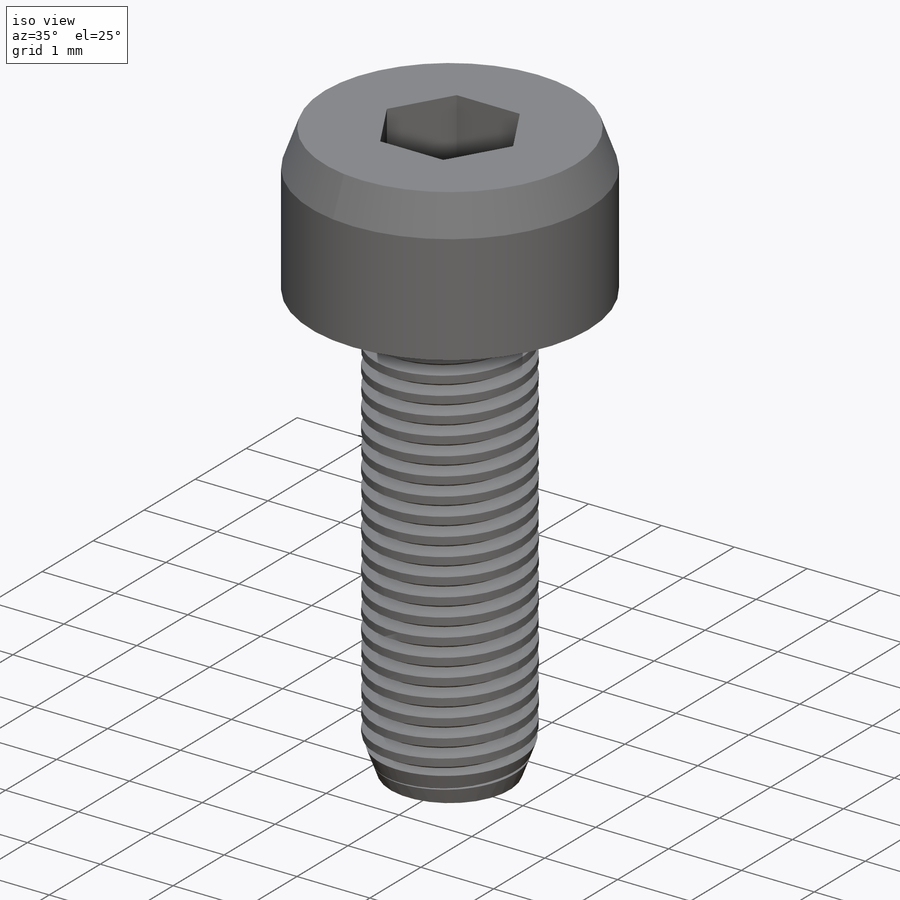
[diagram: iso view]
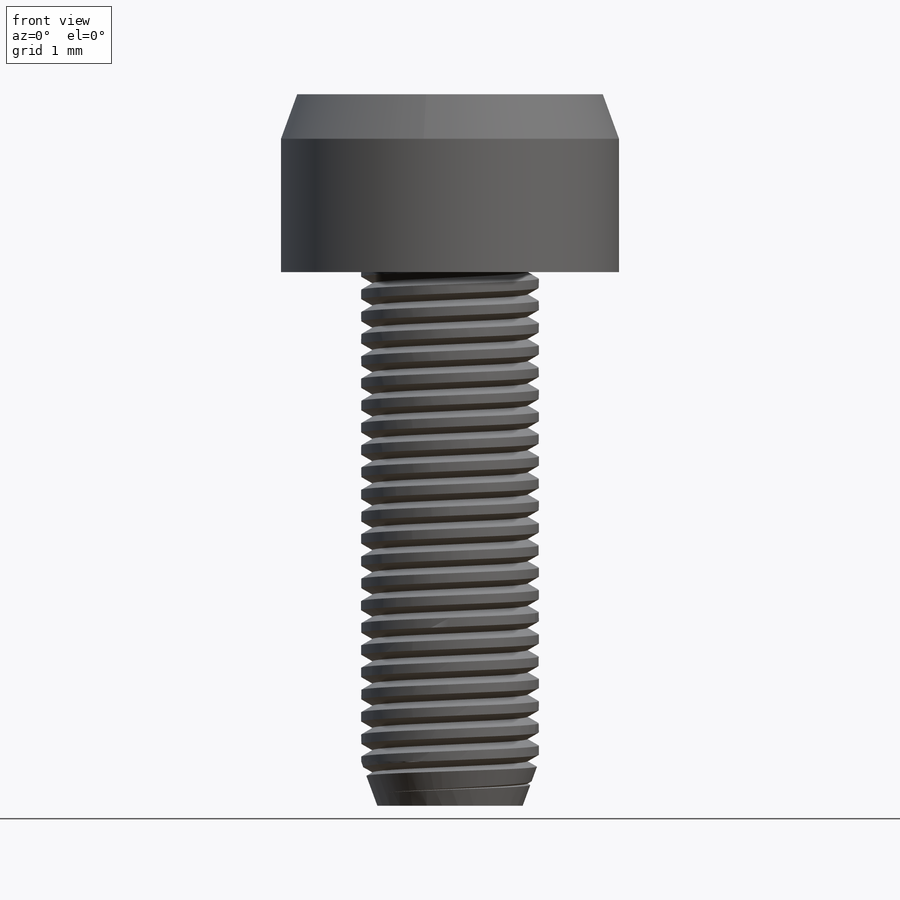
[diagram: front view]
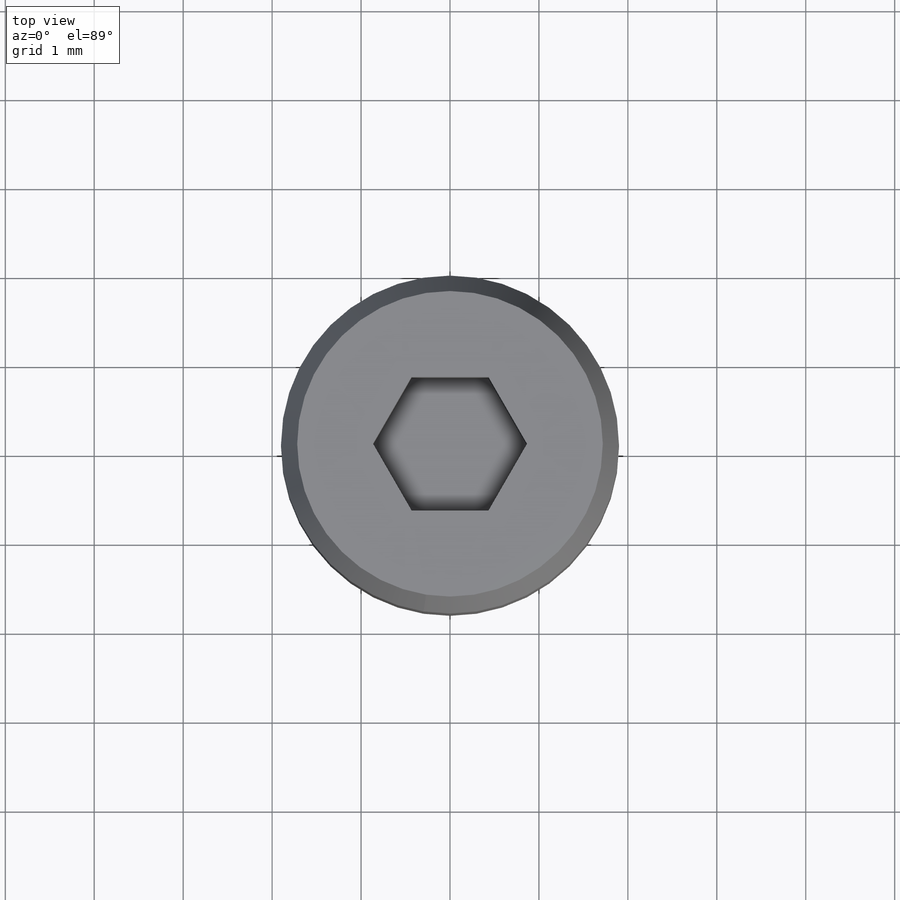
[diagram: top view]
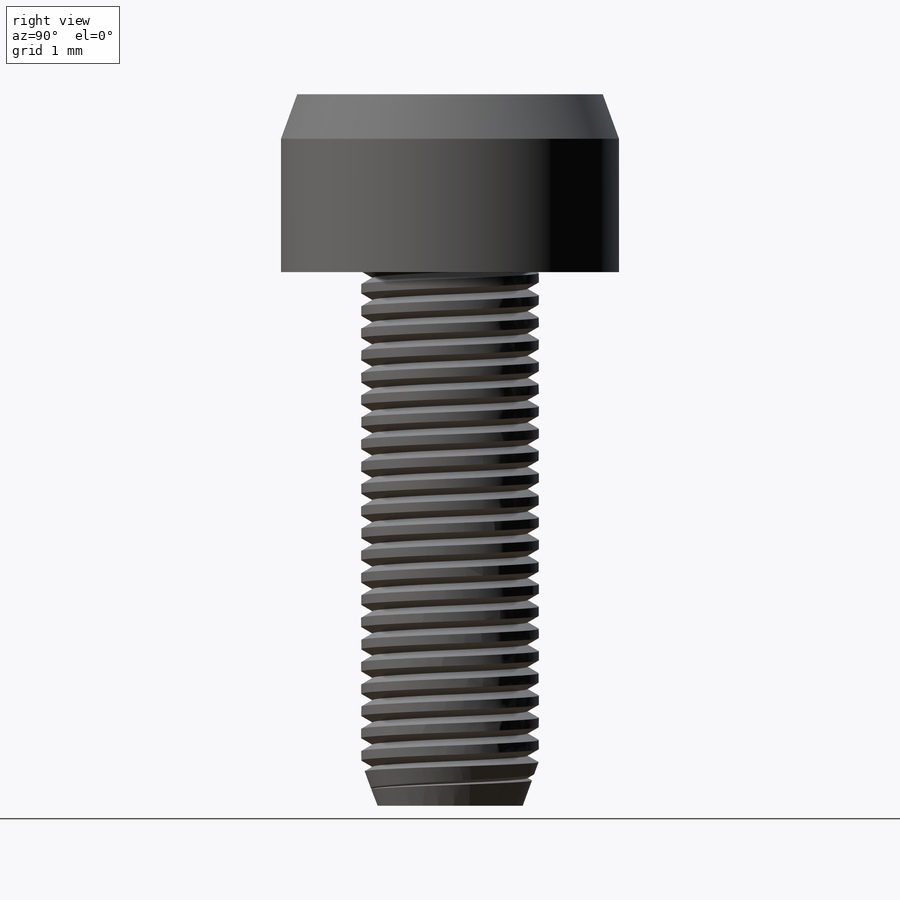
[diagram: right view]
SOLIDWORKS PART (.sldprt)
format: sldprt  version: not decoded by parser v0  size: 620,544 bytes
history: native  units: mm
features: sketch x7, extrude x4, material x1, cut_extrude x1, helix x1, sweep x1 (+12 scaffold rows collapsed)
feature tree (27):
  scaffold x12  (default folders/planes/origin — collapsed)
  material  "Material <not specified>"
  sketch  "Sketch3"  dims[D1=3.8mm]
  extrude  "Boss-Extrude3"  Depth=1.5mm
  sketch  "Sketch4"
  extrude  "Boss-Extrude5"  Depth=0.5mm
  sketch  "Sketch6"  dims[D1=1.5mm]
  cut_extrude  "Cut-Extrude1"  Depth=1mm
  sketch  "Sketch7"  dims[D1=~0.881282mm]
  extrude  "Boss-Extrude6"  Depth=5.5mm
  sketch  "Sketch8"
  extrude  "Boss-Extrude7"  Depth=0.5mm
  sketch  "Sketch9"  dims[D1=~0.830098mm]
  helix  "Helix/Spiral1"  Pitch=6mm
  sketch  "Sketch10"  dims[D1=0.22mm]
  sweep  "Cut-Sweep1"
decode coverage: 11 of 14 modeling features carry decoded parameters
note: ~ marks probable driven/reference dimensions
note: suppression state not decoded; provenance and decode notes live in map.json
